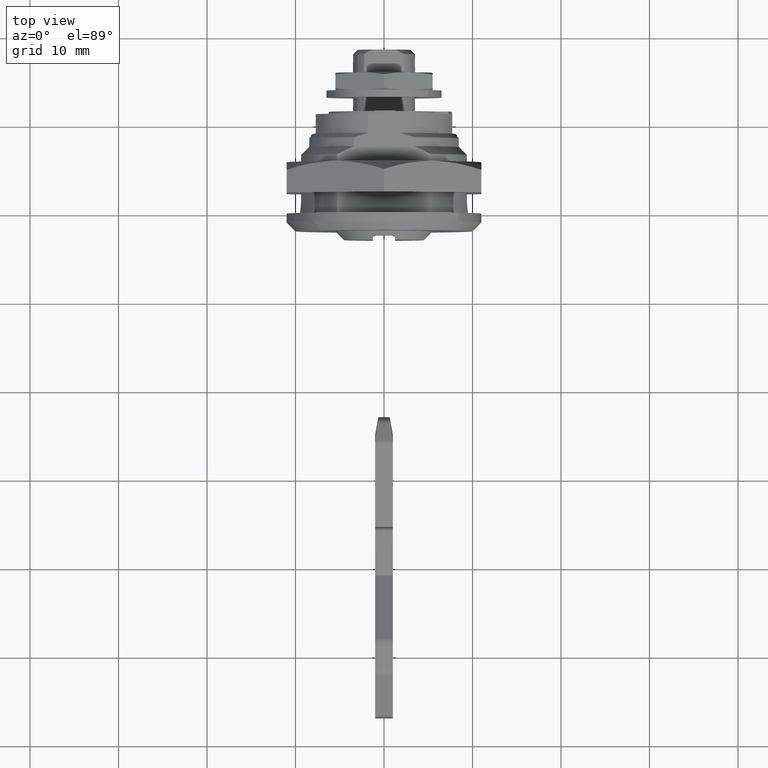
[diagram: clean part render]
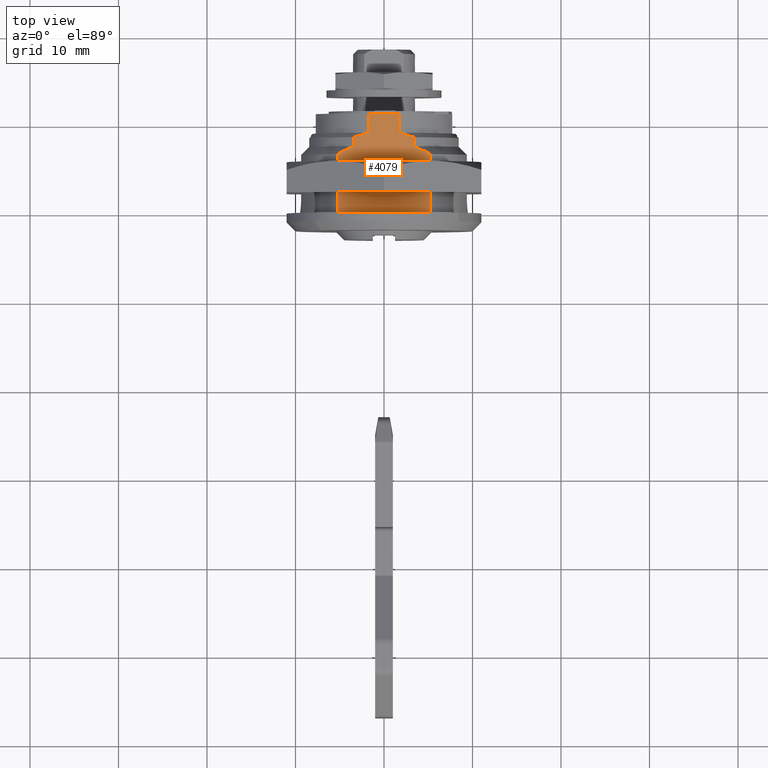
[diagram: same view with one face highlighted and labeled with its STEP entity id]
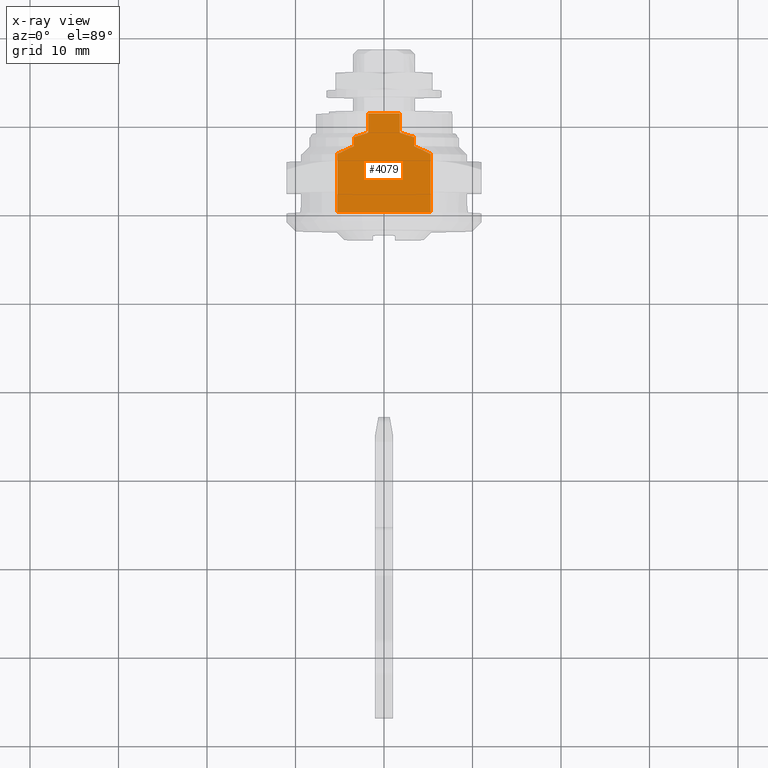
[diagram: x-ray of the same camera — body ghosted, the highlighted face saturated]
A machine part, top view. The second image highlights one B-rep face of the part: STEP entity #4079.
The next image is the same camera in x-ray: the body ghosted, the highlighted face saturated — about 0% of this face is hidden behind the body in this view.
In plain terms, the highlighted face is a freeform B-spline surface patch.
Its self-contained STEP definition (entity closure, byte-faithful):
#3980=CARTESIAN_POINT('',(-0.559439938277960,-5.803471064010232,7.899999999999889));
#3981=CARTESIAN_POINT('',(11.759439437598941,-5.803471064010232,7.899999999999889));
#3982=CARTESIAN_POINT('',(-0.559439938277960,5.803471252707655,7.899999999999889));
#3983=CARTESIAN_POINT('',(11.759439437598941,5.803471252707655,7.899999999999889));
#3984=B_SPLINE_SURFACE_WITH_KNOTS('',1,1,((#3980,#3982),(#3981,#3983)),.UNSPECIFIED.,.F.,.F.,.U.,(2,2),(2,2),(0.0,12.318879375876900),(0.0,11.606942316717889),.UNSPECIFIED.);
#3985=CARTESIAN_POINT('',(0.0,-5.276362383309420,7.899999999999889));
#3986=VERTEX_POINT('',#3985);
#3987=CARTESIAN_POINT('',(6.600000000000000,-5.276362383309330,7.899999999999889));
#3988=VERTEX_POINT('',#3987);
#3989=CARTESIAN_POINT('',(0.0,-5.276362383309420,7.899999999999889));
#3990=CARTESIAN_POINT('',(6.600000000000000,-5.276362383309330,7.899999999999889));
#3991=QUASI_UNIFORM_CURVE('',1,(#3989,#3990),.UNSPECIFIED.,.F.,.U.);
#3992=EDGE_CURVE('',#3986,#3988,#3991,.T.);
#3993=ORIENTED_EDGE('',*,*,#3992,.T.);
#3994=CARTESIAN_POINT('',(7.499999999999900,-3.398529093593810,7.899999999999889));
#3995=VERTEX_POINT('',#3994);
#3996=CARTESIAN_POINT('',(6.600000000000000,-5.276362383309330,7.899999999999889));
#3997=CARTESIAN_POINT('',(6.941409267196238,-4.671412105392328,7.899999999999909));
#3998=CARTESIAN_POINT('',(7.242308375405201,-4.043602939710609,7.899999999999861));
#3999=CARTESIAN_POINT('',(7.499999999999900,-3.398529093593810,7.899999999999889));
#4000=B_SPLINE_CURVE_WITH_KNOTS('',3,(#3996,#3997,#3998,#3999),.UNSPECIFIED.,.F.,.U.,(4,4),(6.397198E-010,2.083926106216798),.UNSPECIFIED.);
#4001=EDGE_CURVE('',#3988,#3995,#4000,.T.);
#4002=ORIENTED_EDGE('',*,*,#4001,.T.);
#4003=CARTESIAN_POINT('',(8.499999999999901,-3.398529093593810,7.899999999999889));
#4004=VERTEX_POINT('',#4003);
#4005=CARTESIAN_POINT('',(7.499999999999900,-3.398529093593810,7.899999999999889));
#4006=CARTESIAN_POINT('',(8.499999999999901,-3.398529093593810,7.899999999999889));
#4007=QUASI_UNIFORM_CURVE('',1,(#4005,#4006),.UNSPECIFIED.,.F.,.U.);
#4008=EDGE_CURVE('',#3995,#4004,#4007,.T.);
#4009=ORIENTED_EDGE('',*,*,#4008,.T.);
#4010=CARTESIAN_POINT('',(9.0,-1.788854382000300,7.899999999999889));
#4011=VERTEX_POINT('',#4010);
#4012=CARTESIAN_POINT('',(8.499999999999901,-3.398529093593810,7.899999999999889));
#4013=CARTESIAN_POINT('',(8.710266936227232,-2.876831826205709,7.899999999999888));
#4014=CARTESIAN_POINT('',(8.877673236720513,-2.337868215352077,7.899999999999888));
#4015=CARTESIAN_POINT('',(9.0,-1.788854382000300,7.899999999999889));
#4016=B_SPLINE_CURVE_WITH_KNOTS('',3,(#4012,#4013,#4014,#4015),.UNSPECIFIED.,.F.,.U.,(4,4),(1.167166E-009,1.687435553263417),.UNSPECIFIED.);
#4017=EDGE_CURVE('',#4004,#4011,#4016,.T.);
#4018=ORIENTED_EDGE('',*,*,#4017,.T.);
#4019=CARTESIAN_POINT('',(11.199999999999880,-1.788854382000300,7.899999999999889));
#4020=VERTEX_POINT('',#4019);
#4021=CARTESIAN_POINT('',(11.199999999999880,-1.788854382000300,7.899999999999889));
#4022=CARTESIAN_POINT('',(9.0,-1.788854382000300,7.899999999999889));
#4023=QUASI_UNIFORM_CURVE('',1,(#4021,#4022),.UNSPECIFIED.,.F.,.U.);
#4024=EDGE_CURVE('',#4020,#4011,#4023,.T.);
#4025=ORIENTED_EDGE('',*,*,#4024,.F.);
#4026=CARTESIAN_POINT('',(11.199999999999999,1.788854381999270,7.899999999999889));
#4027=VERTEX_POINT('',#4026);
#4028=CARTESIAN_POINT('',(11.199999999999999,1.788854381999270,7.899999999999889));
#4029=CARTESIAN_POINT('',(11.199999999999880,-1.788854382000300,7.899999999999889));
#4030=QUASI_UNIFORM_CURVE('',1,(#4028,#4029),.UNSPECIFIED.,.F.,.U.);
#4031=EDGE_CURVE('',#4027,#4020,#4030,.T.);
#4032=ORIENTED_EDGE('',*,*,#4031,.F.);
#4033=CARTESIAN_POINT('',(9.0,1.788854382000300,7.899999999999889));
#4034=VERTEX_POINT('',#4033);
#4035=CARTESIAN_POINT('',(9.0,1.788854382000300,7.899999999999889));
#4036=CARTESIAN_POINT('',(11.199999999999999,1.788854381999270,7.899999999999889));
#4037=QUASI_UNIFORM_CURVE('',1,(#4035,#4036),.UNSPECIFIED.,.F.,.U.);
#4038=EDGE_CURVE('',#4034,#4027,#4037,.T.);
#4039=ORIENTED_EDGE('',*,*,#4038,.F.);
#4040=CARTESIAN_POINT('',(8.499999999999901,3.398529093593810,7.899999999999889));
#4041=VERTEX_POINT('',#4040);
#4042=CARTESIAN_POINT('',(9.0,1.788854382000300,7.899999999999889));
#4043=CARTESIAN_POINT('',(8.876070519706234,2.337463128629781,7.899999999999888));
#4044=CARTESIAN_POINT('',(8.708716067355459,2.876257308658359,7.899999999999896));
#4045=CARTESIAN_POINT('',(8.499999999999901,3.398529093593810,7.899999999999889));
#4046=B_SPLINE_CURVE_WITH_KNOTS('',3,(#4042,#4043,#4044,#4045),.UNSPECIFIED.,.F.,.U.,(4,4),(1.008674E-009,1.687302238867815),.UNSPECIFIED.);
#4047=EDGE_CURVE('',#4034,#4041,#4046,.T.);
#4048=ORIENTED_EDGE('',*,*,#4047,.T.);
#4049=CARTESIAN_POINT('',(7.499999999999900,3.398529093593810,7.899999999999889));
#4050=VERTEX_POINT('',#4049);
#4051=CARTESIAN_POINT('',(8.499999999999901,3.398529093593810,7.899999999999889));
#4052=CARTESIAN_POINT('',(7.499999999999900,3.398529093593810,7.899999999999889));
#4053=QUASI_UNIFORM_CURVE('',1,(#4051,#4052),.UNSPECIFIED.,.F.,.U.);
#4054=EDGE_CURVE('',#4041,#4050,#4053,.T.);
#4055=ORIENTED_EDGE('',*,*,#4054,.T.);
#4056=CARTESIAN_POINT('',(6.600000000000000,5.276362383309330,7.899999999999889));
#4057=VERTEX_POINT('',#4056);
#4058=CARTESIAN_POINT('',(7.499999999999900,3.398529093593810,7.899999999999889));
#4059=CARTESIAN_POINT('',(7.240793965532115,4.042957856283482,7.899999999999897));
#4060=CARTESIAN_POINT('',(6.939966403068620,4.670639963341825,7.899999999999889));
#4061=CARTESIAN_POINT('',(6.600000000000000,5.276362383309330,7.899999999999889));
#4062=B_SPLINE_CURVE_WITH_KNOTS('',3,(#4058,#4059,#4060,#4061),.UNSPECIFIED.,.F.,.U.,(4,4),(5.541068E-010,2.083818023893457),.UNSPECIFIED.);
#4063=EDGE_CURVE('',#4050,#4057,#4062,.T.);
#4064=ORIENTED_EDGE('',*,*,#4063,.T.);
#4065=CARTESIAN_POINT('',(0.0,5.276362383309420,7.899999999999889));
#4066=VERTEX_POINT('',#4065);
#4067=CARTESIAN_POINT('',(6.600000000000000,5.276362383309330,7.899999999999889));
#4068=CARTESIAN_POINT('',(0.0,5.276362383309420,7.899999999999889));
#4069=QUASI_UNIFORM_CURVE('',1,(#4067,#4068),.UNSPECIFIED.,.F.,.U.);
#4070=EDGE_CURVE('',#4057,#4066,#4069,.T.);
#4071=ORIENTED_EDGE('',*,*,#4070,.T.);
#4072=CARTESIAN_POINT('',(0.0,5.276362383309420,7.899999999999889));
#4073=CARTESIAN_POINT('',(0.0,-5.276362383309420,7.899999999999889));
#4074=QUASI_UNIFORM_CURVE('',1,(#4072,#4073),.UNSPECIFIED.,.F.,.U.);
#4075=EDGE_CURVE('',#4066,#3986,#4074,.T.);
#4076=ORIENTED_EDGE('',*,*,#4075,.T.);
#4077=EDGE_LOOP('',(#3993,#4002,#4009,#4018,#4025,#4032,#4039,#4048,#4055,#4064,#4071,#4076));
#4078=FACE_OUTER_BOUND('',#4077,.T.);
#4079=ADVANCED_FACE('',(#4078),#3984,.T.);